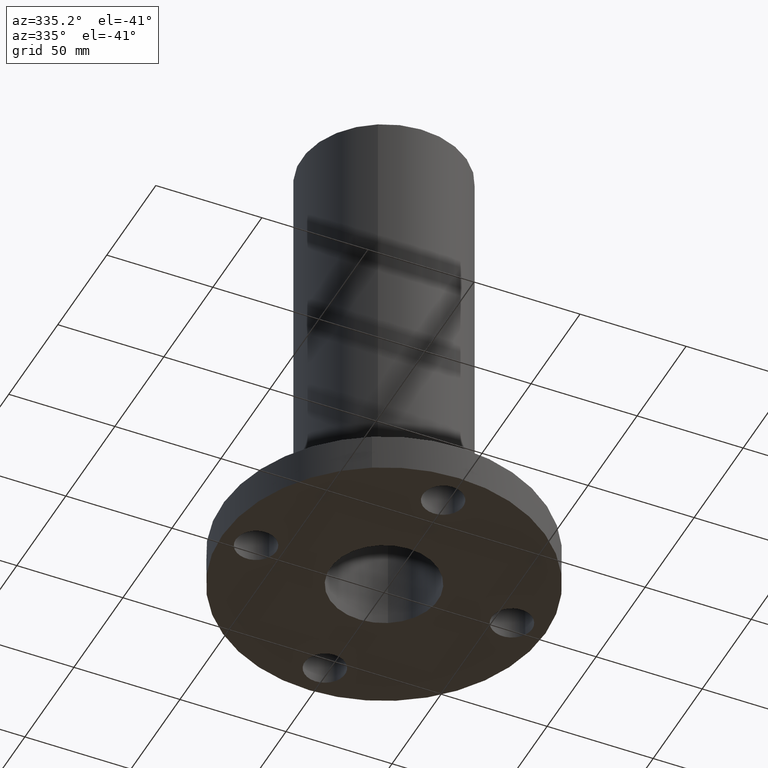
[diagram: clean part render]
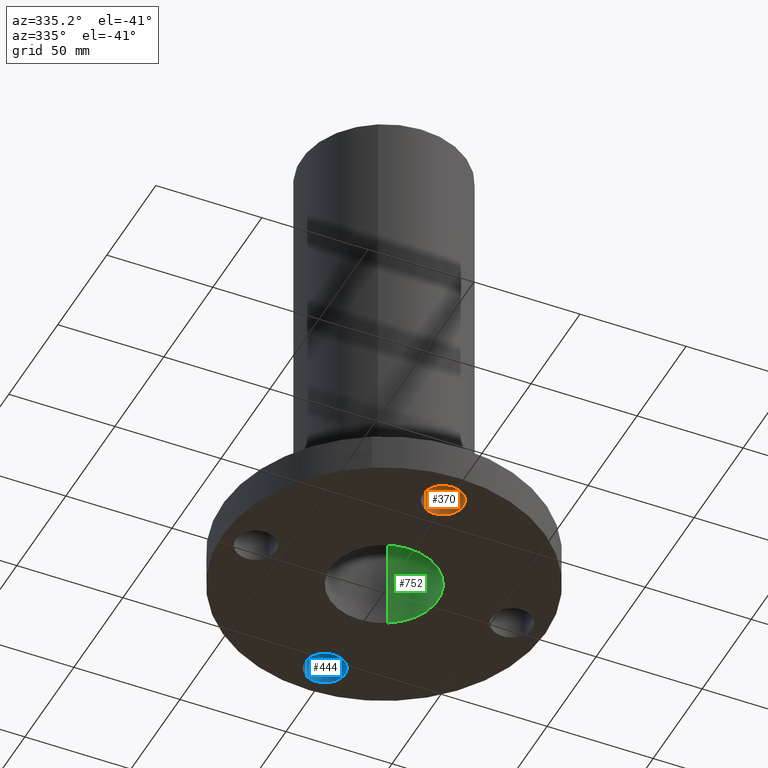
[diagram: same view with three faces highlighted in distinct colors, each labeled with its STEP entity id]
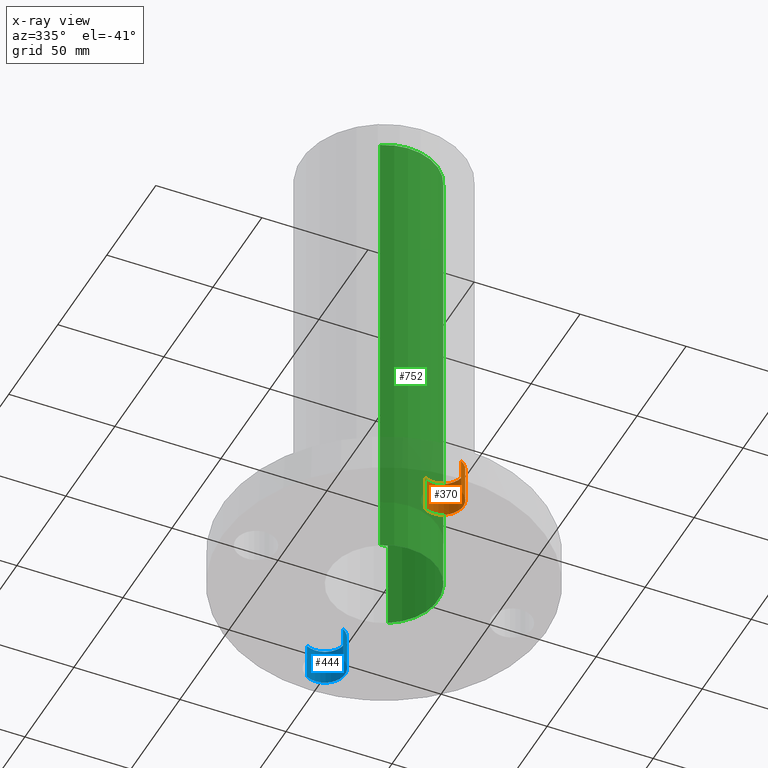
[diagram: x-ray of the same camera — body ghosted, the three highlighted faces saturated]
A machine part, auxiliary view with three faces highlighted in distinct colors.
The next image is the same camera in x-ray (body ghosted, the three faces saturated) — at least one of them is partly hidden behind the body in this view.
Their STEP definitions:

[orange] entity #370 — the highlighted cylindrical surface (edge-blend (fillet) strip) has radius 9.525 mm, axis along (-0, 0, 1).
#139=AXIS2_PLACEMENT_3D('Circle Axis2P3D',#137,#138,$) ;
#331=AXIS2_PLACEMENT_3D('Cylinder Axis2P3D',#328,#329,#330) ;
#361=AXIS2_PLACEMENT_3D('Circle Axis2P3D',#359,#360,$) ;
#137=CARTESIAN_POINT('Axis2P3D Location',(-1.74838271595E-016,-2.37500000001,0.687500000003)) ;
#141=CARTESIAN_POINT('Vertex',(-0.179784576977,-2.0459065393,0.687500000003)) ;
#143=CARTESIAN_POINT('Vertex',(0.179784576977,-2.70409346072,0.687500000003)) ;
#328=CARTESIAN_POINT('Axis2P3D Location',(-1.34314427152E-016,-2.37500000001,0.00393700787402)) ;
#333=CARTESIAN_POINT('Line Origine',(-0.179784576977,-2.0459065393,0.343750000001)) ;
#337=CARTESIAN_POINT('Vertex',(-0.179784576977,-2.0459065393,2.2401153548E-016)) ;
#340=CARTESIAN_POINT('Line Origine',(0.179784576977,-2.70409346072,0.343750000001)) ;
#344=CARTESIAN_POINT('Vertex',(0.179784576977,-2.70409346072,2.2401153548E-016)) ;
#359=CARTESIAN_POINT('Axis2P3D Location',(-1.34314427152E-016,-2.37500000001,0.)) ;
#138=DIRECTION('Axis2P3D Direction',(0.,0.,-0.0393700787402)) ;
#329=DIRECTION('Axis2P3D Direction',(-0.,0.,0.0393700787402)) ;
#330=DIRECTION('Axis2P3D XDirection',(0.0188750212049,-0.0345504945626,0.)) ;
#334=DIRECTION('Vector Direction',(0.,0.,0.0393700787402)) ;
#341=DIRECTION('Vector Direction',(0.,0.,0.0393700787402)) ;
#360=DIRECTION('Axis2P3D Direction',(-0.,0.,0.0393700787402)) ;
#335=VECTOR('Line Direction',#334,0.0393700787402) ;
#342=VECTOR('Line Direction',#341,0.0393700787402) ;
#365=ORIENTED_EDGE('',*,*,#346,.F.) ;
#366=ORIENTED_EDGE('',*,*,#145,.F.) ;
#367=ORIENTED_EDGE('',*,*,#339,.T.) ;
#368=ORIENTED_EDGE('',*,*,#363,.T.) ;
#370=ADVANCED_FACE('PartBody',(#369),#332,.F.) ;
#140=CIRCLE('generated circle',#139,0.375000000002) ;
#362=CIRCLE('generated circle',#361,0.375000000002) ;
#332=CYLINDRICAL_SURFACE('generated cylinder',#331,0.375000000002) ;
#145=EDGE_CURVE('',#142,#144,#140,.T.) ;
#339=EDGE_CURVE('',#142,#338,#336,.F.) ;
#346=EDGE_CURVE('',#144,#345,#343,.F.) ;
#363=EDGE_CURVE('',#338,#345,#362,.F.) ;
#364=EDGE_LOOP('',(#365,#366,#367,#368)) ;
#369=FACE_OUTER_BOUND('',#364,.T.) ;
#336=LINE('Line',#333,#335) ;
#343=LINE('Line',#340,#342) ;
#142=VERTEX_POINT('',#141) ;
#144=VERTEX_POINT('',#143) ;
#338=VERTEX_POINT('',#337) ;
#345=VERTEX_POINT('',#344) ;

[blue] entity #444 — the highlighted cylindrical surface (edge-blend (fillet) strip) has radius 9.525 mm, axis along (0, 0, 1).
#184=AXIS2_PLACEMENT_3D('Circle Axis2P3D',#182,#183,$) ;
#417=AXIS2_PLACEMENT_3D('Cylinder Axis2P3D',#414,#415,#416) ;
#435=AXIS2_PLACEMENT_3D('Circle Axis2P3D',#433,#434,$) ;
#177=CARTESIAN_POINT('Vertex',(0.179784576977,2.0459065393,0.687500000003)) ;
#179=CARTESIAN_POINT('Vertex',(-0.179784576977,2.70409346072,0.687500000003)) ;
#182=CARTESIAN_POINT('Axis2P3D Location',(-3.49676543189E-017,2.37500000001,0.687500000003)) ;
#414=CARTESIAN_POINT('Axis2P3D Location',(-1.56539187647E-016,2.37500000001,0.00393700787402)) ;
#419=CARTESIAN_POINT('Line Origine',(0.179784576977,2.0459065393,0.343750000001)) ;
#423=CARTESIAN_POINT('Vertex',(0.179784576977,2.0459065393,2.2401153548E-016)) ;
#426=CARTESIAN_POINT('Line Origine',(-0.179784576977,2.70409346072,0.343750000001)) ;
#430=CARTESIAN_POINT('Vertex',(-0.179784576977,2.70409346072,2.2401153548E-016)) ;
#433=CARTESIAN_POINT('Axis2P3D Location',(-1.56539187647E-016,2.37500000001,0.)) ;
#183=DIRECTION('Axis2P3D Direction',(0.,0.,-0.0393700787402)) ;
#415=DIRECTION('Axis2P3D Direction',(0.,0.,0.0393700787402)) ;
#416=DIRECTION('Axis2P3D XDirection',(-0.0188750212049,0.0345504945626,0.)) ;
#420=DIRECTION('Vector Direction',(0.,0.,0.0393700787402)) ;
#427=DIRECTION('Vector Direction',(0.,0.,0.0393700787402)) ;
#434=DIRECTION('Axis2P3D Direction',(0.,0.,0.0393700787402)) ;
#421=VECTOR('Line Direction',#420,0.0393700787402) ;
#428=VECTOR('Line Direction',#427,0.0393700787402) ;
#439=ORIENTED_EDGE('',*,*,#425,.F.) ;
#440=ORIENTED_EDGE('',*,*,#186,.F.) ;
#441=ORIENTED_EDGE('',*,*,#432,.T.) ;
#442=ORIENTED_EDGE('',*,*,#437,.T.) ;
#444=ADVANCED_FACE('PartBody',(#443),#418,.F.) ;
#185=CIRCLE('generated circle',#184,0.375000000002) ;
#436=CIRCLE('generated circle',#435,0.375000000002) ;
#418=CYLINDRICAL_SURFACE('generated cylinder',#417,0.375000000002) ;
#186=EDGE_CURVE('',#180,#178,#185,.T.) ;
#425=EDGE_CURVE('',#178,#424,#422,.F.) ;
#432=EDGE_CURVE('',#180,#431,#429,.F.) ;
#437=EDGE_CURVE('',#431,#424,#436,.F.) ;
#438=EDGE_LOOP('',(#439,#440,#441,#442)) ;
#443=FACE_OUTER_BOUND('',#438,.T.) ;
#422=LINE('Line',#419,#421) ;
#429=LINE('Line',#426,#428) ;
#178=VERTEX_POINT('',#177) ;
#180=VERTEX_POINT('',#179) ;
#424=VERTEX_POINT('',#423) ;
#431=VERTEX_POINT('',#430) ;

[green] entity #752 — the highlighted cylindrical surface (partial cylindrical patch) has radius 25.4 mm, axis along (0, 0, -1).
#535=AXIS2_PLACEMENT_3D('Circle Axis2P3D',#533,#534,$) ;
#725=AXIS2_PLACEMENT_3D('Cylinder Axis2P3D',#722,#723,#724) ;
#729=AXIS2_PLACEMENT_3D('Circle Axis2P3D',#727,#728,$) ;
#528=CARTESIAN_POINT('Vertex',(-0.479425538606,-0.877582561894,8.93750000004)) ;
#530=CARTESIAN_POINT('Vertex',(0.479425538606,0.877582561894,8.93750000004)) ;
#533=CARTESIAN_POINT('Axis2P3D Location',(0.,0.,8.93750000004)) ;
#722=CARTESIAN_POINT('Axis2P3D Location',(0.,0.,4.43750000002)) ;
#727=CARTESIAN_POINT('Axis2P3D Location',(0.,0.,0.)) ;
#731=CARTESIAN_POINT('Vertex',(-0.479425538606,-0.877582561894,0.)) ;
#733=CARTESIAN_POINT('Vertex',(0.479425538606,0.877582561894,0.)) ;
#736=CARTESIAN_POINT('Line Origine',(-0.479425538606,-0.877582561894,4.46875000002)) ;
#741=CARTESIAN_POINT('Line Origine',(0.479425538606,0.877582561894,4.46875000002)) ;
#534=DIRECTION('Axis2P3D Direction',(0.,0.,-0.0393700787402)) ;
#723=DIRECTION('Axis2P3D Direction',(0.,0.,-0.0393700787402)) ;
#724=DIRECTION('Axis2P3D XDirection',(-0.0188750212049,-0.0345504945626,0.)) ;
#728=DIRECTION('Axis2P3D Direction',(0.,0.,-0.0393700787402)) ;
#737=DIRECTION('Vector Direction',(0.,0.,-0.0393700787402)) ;
#742=DIRECTION('Vector Direction',(0.,0.,-0.0393700787402)) ;
#738=VECTOR('Line Direction',#737,0.0393700787402) ;
#743=VECTOR('Line Direction',#742,0.0393700787402) ;
#747=ORIENTED_EDGE('',*,*,#735,.F.) ;
#748=ORIENTED_EDGE('',*,*,#740,.F.) ;
#749=ORIENTED_EDGE('',*,*,#537,.F.) ;
#750=ORIENTED_EDGE('',*,*,#745,.T.) ;
#752=ADVANCED_FACE('PartBody',(#751),#726,.F.) ;
#536=CIRCLE('generated circle',#535,1.) ;
#730=CIRCLE('generated circle',#729,1.) ;
#726=CYLINDRICAL_SURFACE('generated cylinder',#725,1.) ;
#537=EDGE_CURVE('',#531,#529,#536,.T.) ;
#735=EDGE_CURVE('',#732,#734,#730,.F.) ;
#740=EDGE_CURVE('',#529,#732,#739,.T.) ;
#745=EDGE_CURVE('',#531,#734,#744,.T.) ;
#746=EDGE_LOOP('',(#747,#748,#749,#750)) ;
#751=FACE_OUTER_BOUND('',#746,.T.) ;
#739=LINE('Line',#736,#738) ;
#744=LINE('Line',#741,#743) ;
#529=VERTEX_POINT('',#528) ;
#531=VERTEX_POINT('',#530) ;
#732=VERTEX_POINT('',#731) ;
#734=VERTEX_POINT('',#733) ;